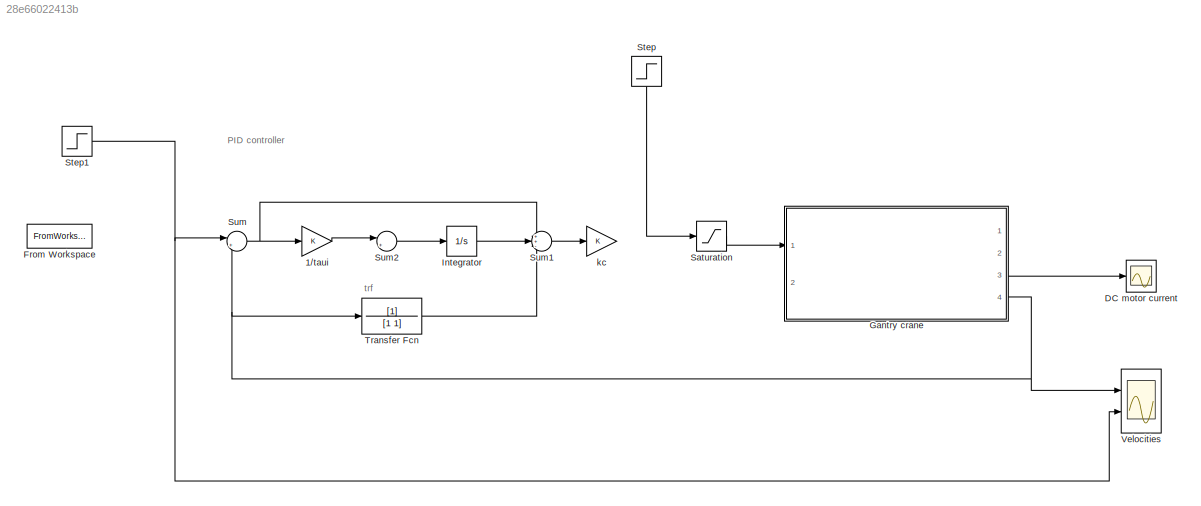
MODEL slx_28e66022413b
KIND model
CONFIG AbsTol = auto
CONFIG EnableMultiTasking = off
CONFIG FixedStep = auto
CONFIG MaxStep = auto
CONFIG MinStep = auto
CONFIG RelTol = 1e-3
CONFIG SampleTimeConstraint = Unconstrained
CONFIG Solver = ode23t
CONFIG SolverName = ode23t
CONFIG StartTime = 0.0
CONFIG StopTime = 20
BLOCK [Gain] 1//taui
BLOCK [Scope] DC motor current
  Floating = off
  NumInputPorts = 1
  Ports = [1]
  ScopeSpecificationString = Simulink.scopes.TimeScopeBlockCfg('CurrentConfiguration', extmgr.ConfigurationSet(extmgr.Configuration('Core','General UI',true),extmgr.Configuration('Core','Source UI',true),extmgr.Configuration('Sources','WiredSimulink',true,'DataLoggingVariableName','ScopeData1'),extmgr.Configuration('Visuals','Time Domain',true,'SerializedDisplays',{struct('MinYLimReal','-278.24613','MaxYLimReal','1366.8436','...<+1441ch>
BLOCK [FromWorkspace] From Workspace
  Commented = on
  VariableName = vel_in
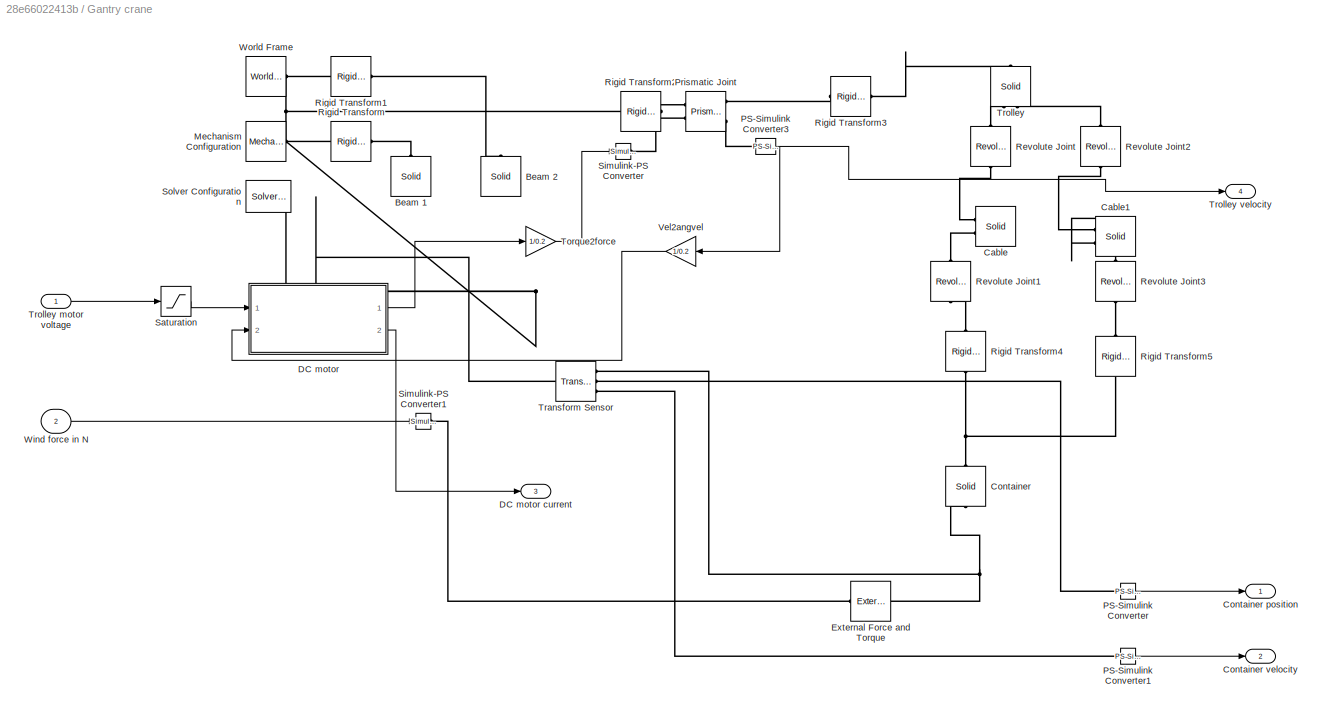
BLOCK [SubSystem] Gantry crane
  Ports = [2, 4]
  RequestExecContextInheritance = off
BLOCK [Reference] Gantry crane/Beam 1  REF=sm_lib/Body Elements/Solid
  Ports = [0, 0, 0, 0, 0, 0, 1]
  SourceBlock = sm_lib/Body Elements/Solid
  SourceProductBaseCode = MS
  SourceType = Brick Solid
BLOCK [Reference] Gantry crane/Beam 2  REF=sm_lib/Body Elements/Solid
  Ports = [0, 0, 0, 0, 0, 0, 1]
  SourceBlock = sm_lib/Body Elements/Solid
  SourceProductBaseCode = MS
  SourceType = Brick Solid
BLOCK [Reference] Gantry crane/Cable  REF=sm_lib/Body Elements/Solid
  Ports = [0, 0, 0, 0, 0, 2, 1]
  SourceBlock = sm_lib/Body Elements/Solid
  SourceProductBaseCode = MS
  SourceType = Cylindrical Solid
BLOCK [Reference] Gantry crane/Cable1  REF=sm_lib/Body Elements/Solid
  Ports = [0, 0, 0, 0, 0, 2, 1]
  SourceBlock = sm_lib/Body Elements/Solid
  SourceProductBaseCode = MS
  SourceType = Cylindrical Solid
BLOCK [Reference] Gantry crane/Container  REF=sm_lib/Body Elements/Solid
  Ports = [0, 0, 0, 0, 0, 1, 1]
  SourceBlock = sm_lib/Body Elements/Solid
  SourceProductBaseCode = MS
  SourceType = Brick Solid
BLOCK [Outport] Gantry crane/Container position
BLOCK [Outport] Gantry crane/Container velocity
  Port = 2
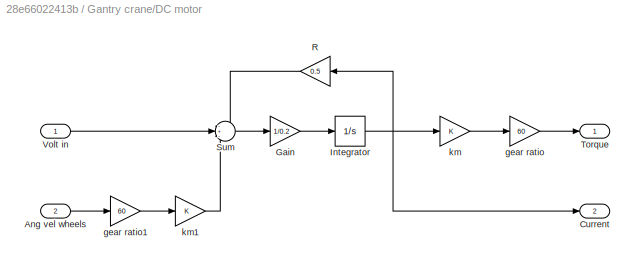
BLOCK [SubSystem] Gantry crane/DC motor
  Ports = [2, 2]
  RequestExecContextInheritance = off
BLOCK [Outport] Gantry crane/DC motor current
  Port = 3
BLOCK [Inport] Gantry crane/DC motor/Ang vel wheels
  Port = 2
BLOCK [Outport] Gantry crane/DC motor/Current
  Port = 2
BLOCK [Gain] Gantry crane/DC motor/Gain
  Gain = 1/0.2
BLOCK [Integrator] Gantry crane/DC motor/Integrator
  Ports = [1, 1]
BLOCK [Gain] Gantry crane/DC motor/R
  Gain = 0.5
BLOCK [Sum] Gantry crane/DC motor/Sum
  Inputs = -+-
  Ports = [3, 1]
BLOCK [Outport] Gantry crane/DC motor/Torque
BLOCK [Inport] Gantry crane/DC motor/Volt in
BLOCK [Gain] Gantry crane/DC motor/gear ratio
  Gain = 60
BLOCK [Gain] Gantry crane/DC motor/gear ratio1
  Gain = 60
BLOCK [Gain] Gantry crane/DC motor/km
BLOCK [Gain] Gantry crane/DC motor/km1
BLOCK [Reference] Gantry crane/External Force and Torque  REF=sm_lib/Forces and
Torques/External Force
and Torque
  Ports = [0, 0, 0, 0, 0, 1, 1]
  SourceBlock = sm_lib/Forces and\nTorques/External Force\nand Torque
  SourceProductBaseCode = MS
  SourceType = External Force\nand Torque
BLOCK [Reference] Gantry crane/Mechanism Configuration  REF=sm_lib/Utilities/Mechanism
Configuration
  Ports = [0, 0, 0, 0, 0, 0, 1]
  SourceBlock = sm_lib/Utilities/Mechanism\nConfiguration
  SourceProductBaseCode = MS
  SourceType = Mechanism\nConfiguration
BLOCK [Reference] Gantry crane/PS-Simulink Converter  REF=nesl_utility/PS-Simulink
Converter
  Ports = [0, 1, 0, 0, 0, 1]
  SourceBlock = nesl_utility/PS-Simulink\nConverter
  SourceProductBaseCode = PW,SS
  SourceType = PS-Simulink\nConverter
BLOCK [Reference] Gantry crane/PS-Simulink Converter1  REF=nesl_utility/PS-Simulink
Converter
  Ports = [0, 1, 0, 0, 0, 1]
  SourceBlock = nesl_utility/PS-Simulink\nConverter
  SourceProductBaseCode = PW,SS
  SourceType = PS-Simulink\nConverter
BLOCK [Reference] Gantry crane/PS-Simulink Converter3  REF=nesl_utility/PS-Simulink
Converter
  Ports = [0, 1, 0, 0, 0, 1]
  SourceBlock = nesl_utility/PS-Simulink\nConverter
  SourceProductBaseCode = PW,SS
  SourceType = PS-Simulink\nConverter
BLOCK [Reference] Gantry crane/Prismatic Joint  REF=sm_lib/Joints/Prismatic
Joint
  Ports = [0, 0, 0, 0, 0, 2, 3]
  SourceBlock = sm_lib/Joints/Prismatic\nJoint
  SourceProductBaseCode = MS
  SourceType = Prismatic\nJoint
BLOCK [Reference] Gantry crane/Revolute Joint  REF=sm_lib/Joints/Revolute Joint
  Ports = [0, 0, 0, 0, 0, 1, 1]
  SourceBlock = sm_lib/Joints/Revolute Joint
  SourceProductBaseCode = MS
  SourceType = Revolute Joint
BLOCK [Reference] Gantry crane/Revolute Joint1  REF=sm_lib/Joints/Revolute Joint
  Ports = [0, 0, 0, 0, 0, 1, 1]
  SourceBlock = sm_lib/Joints/Revolute Joint
  SourceProductBaseCode = MS
  SourceType = Revolute Joint
BLOCK [Reference] Gantry crane/Revolute Joint2  REF=sm_lib/Joints/Revolute Joint
  Ports = [0, 0, 0, 0, 0, 1, 1]
  SourceBlock = sm_lib/Joints/Revolute Joint
  SourceProductBaseCode = MS
  SourceType = Revolute Joint
BLOCK [Reference] Gantry crane/Revolute Joint3  REF=sm_lib/Joints/Revolute Joint
  Ports = [0, 0, 0, 0, 0, 1, 1]
  SourceBlock = sm_lib/Joints/Revolute Joint
  SourceProductBaseCode = MS
  SourceType = Revolute Joint
BLOCK [Reference] Gantry crane/Rigid Transform  REF=sm_lib/Frames and
Transforms/Rigid
Transform
  Ports = [0, 0, 0, 0, 0, 1, 1]
  SourceBlock = sm_lib/Frames and\nTransforms/Rigid\nTransform
  SourceProductBaseCode = MS
  SourceType = Rigid\nTransform
BLOCK [Reference] Gantry crane/Rigid Transform1  REF=sm_lib/Frames and
Transforms/Rigid
Transform
  Ports = [0, 0, 0, 0, 0, 1, 1]
  SourceBlock = sm_lib/Frames and\nTransforms/Rigid\nTransform
  SourceProductBaseCode = MS
  SourceType = Rigid\nTransform
BLOCK [Reference] Gantry crane/Rigid Transform2  REF=sm_lib/Frames and
Transforms/Rigid
Transform
  Ports = [0, 0, 0, 0, 0, 1, 1]
  SourceBlock = sm_lib/Frames and\nTransforms/Rigid\nTransform
  SourceProductBaseCode = MS
  SourceType = Rigid\nTransform
BLOCK [Reference] Gantry crane/Rigid Transform3  REF=sm_lib/Frames and
Transforms/Rigid
Transform
  Ports = [0, 0, 0, 0, 0, 1, 1]
  SourceBlock = sm_lib/Frames and\nTransforms/Rigid\nTransform
  SourceProductBaseCode = MS
  SourceType = Rigid\nTransform
BLOCK [Reference] Gantry crane/Rigid Transform4  REF=sm_lib/Frames and
Transforms/Rigid
Transform
  Ports = [0, 0, 0, 0, 0, 1, 1]
  SourceBlock = sm_lib/Frames and\nTransforms/Rigid\nTransform
  SourceProductBaseCode = MS
  SourceType = Rigid\nTransform
BLOCK [Reference] Gantry crane/Rigid Transform5  REF=sm_lib/Frames and
Transforms/Rigid
Transform
  Ports = [0, 0, 0, 0, 0, 1, 1]
  SourceBlock = sm_lib/Frames and\nTransforms/Rigid\nTransform
  SourceProductBaseCode = MS
  SourceType = Rigid\nTransform
BLOCK [Saturate] Gantry crane/Saturation
  LowerLimit = -600
  UpperLimit = 600
BLOCK [Reference] Gantry crane/Simulink-PS Converter  REF=nesl_utility/Simulink-PS
Converter
  Ports = [1, 0, 0, 0, 0, 0, 1]
  SourceBlock = nesl_utility/Simulink-PS\nConverter
  SourceProductBaseCode = PW,SS
  SourceType = Simulink-PS\nConverter
BLOCK [Reference] Gantry crane/Simulink-PS Converter1  REF=nesl_utility/Simulink-PS
Converter
  Ports = [1, 0, 0, 0, 0, 0, 1]
  SourceBlock = nesl_utility/Simulink-PS\nConverter
  SourceProductBaseCode = PW,SS
  SourceType = Simulink-PS\nConverter
BLOCK [Reference] Gantry crane/Solver Configuration  REF=nesl_utility/Solver
Configuration
  Ports = [0, 0, 0, 0, 0, 0, 1]
  SourceBlock = nesl_utility/Solver\nConfiguration
  SourceProductBaseCode = PW,SS
  SourceType = Solver\nConfiguration
BLOCK [Gain] Gantry crane/Torque2force
  Gain = 1/0.2
BLOCK [Reference] Gantry crane/Transform Sensor  REF=sm_lib/Frames and
Transforms/Transform
Sensor
  Ports = [0, 0, 0, 0, 0, 1, 3]
  SourceBlock = sm_lib/Frames and\nTransforms/Transform\nSensor
  SourceProductBaseCode = MS
  SourceType = Transform\nSensor
BLOCK [Reference] Gantry crane/Trolley  REF=sm_lib/Body Elements/Solid
  Ports = [0, 0, 0, 0, 0, 2, 1]
  SourceBlock = sm_lib/Body Elements/Solid
  SourceProductBaseCode = MS
  SourceType = Brick Solid
BLOCK [Inport] Gantry crane/Trolley motor voltage
BLOCK [Outport] Gantry crane/Trolley velocity
  Port = 4
BLOCK [Gain] Gantry crane/Vel2angvel
  Gain = 1/0.2
BLOCK [Inport] Gantry crane/Wind force in N
  Port = 2
BLOCK [Reference] Gantry crane/World Frame  REF=sm_lib/Frames and
Transforms/World Frame
  Ports = [0, 0, 0, 0, 0, 0, 1]
  SourceBlock = sm_lib/Frames and\nTransforms/World Frame
  SourceProductBaseCode = MS
  SourceType = World Frame
BLOCK [Integrator] Integrator
  Ports = [1, 1]
BLOCK [Saturate] Saturation
  LowerLimit = -600
  UpperLimit = 600
BLOCK [Step] Step
  After = 50
  SampleTime = 0
BLOCK [Step] Step1
  SampleTime = 0
BLOCK [Sum] Sum
  Inputs = |+-
  Ports = [2, 1]
BLOCK [Sum] Sum1
  Inputs = ++-
  Ports = [3, 1]
BLOCK [Sum] Sum2
  Inputs = |++
  Ports = [2, 1]
BLOCK [TransferFcn] Transfer Fcn
  Denominator = [1 1]
BLOCK [Scope] Velocities
  Floating = off
  NumInputPorts = 2
  Ports = [2]
  ScopeSpecificationString = Simulink.scopes.TimeScopeBlockCfg('CurrentConfiguration', extmgr.ConfigurationSet(extmgr.Configuration('Core','General UI',true),extmgr.Configuration('Core','Source UI',true),extmgr.Configuration('Sources','WiredSimulink',true,'DataLoggingVariableName','ScopeData1'),extmgr.Configuration('Visuals','Time Domain',true,'SerializedDisplays',{struct('MinYLimReal','-0.17453','MaxYLimReal','1.31403','YLab...<+1701ch>
BLOCK [Gain] kc
ANNOTATION (root): PID controller
ANNOTATION (root): trf
LINE 1//taui:1 -> Sum2:1
LINE Gantry crane/DC motor/Ang vel wheels:1 -> Gantry crane/DC motor/gear ratio1:1
LINE Gantry crane/DC motor/Gain:1 -> Gantry crane/DC motor/Integrator:1
NET Gantry crane/DC motor/Integrator:1 -> Gantry crane/DC motor/Current:1, Gantry crane/DC motor/R:1, Gantry crane/DC motor/km:1
LINE Gantry crane/DC motor/R:1 -> Gantry crane/DC motor/Sum:1
LINE Gantry crane/DC motor/Sum:1 -> Gantry crane/DC motor/Gain:1
LINE Gantry crane/DC motor/Volt in:1 -> Gantry crane/DC motor/Sum:2
LINE Gantry crane/DC motor/gear ratio1:1 -> Gantry crane/DC motor/km1:1
LINE Gantry crane/DC motor/gear ratio:1 -> Gantry crane/DC motor/Torque:1
LINE Gantry crane/DC motor/km1:1 -> Gantry crane/DC motor/Sum:3
LINE Gantry crane/DC motor/km:1 -> Gantry crane/DC motor/gear ratio:1
LINE Gantry crane/DC motor:1 -> Gantry crane/Torque2force:1
LINE Gantry crane/DC motor:2 -> Gantry crane/DC motor current:1
LINE Gantry crane/PS-Simulink Converter1:1 -> Gantry crane/Container velocity:1
NET Gantry crane/PS-Simulink Converter3:1 -> Gantry crane/Trolley velocity:1, Gantry crane/Vel2angvel:1
LINE Gantry crane/PS-Simulink Converter:1 -> Gantry crane/Container position:1
LINE Gantry crane/Saturation:1 -> Gantry crane/DC motor:1
LINE Gantry crane/Torque2force:1 -> Gantry crane/Simulink-PS Converter:1
LINE Gantry crane/Trolley motor voltage:1 -> Gantry crane/Saturation:1
LINE Gantry crane/Vel2angvel:1 -> Gantry crane/DC motor:2
LINE Gantry crane/Wind force in N:1 -> Gantry crane/Simulink-PS Converter1:1
LINE Gantry crane:3 -> DC motor current:1
NET Gantry crane:4 -> Sum:2, Transfer Fcn:1, Velocities:1
LINE Integrator:1 -> Sum1:2
LINE Saturation:1 -> Gantry crane:1
NET Step1:1 -> Sum:1, Velocities:2
LINE Step:1 -> Saturation:1
LINE Sum1:1 -> kc:1
LINE Sum2:1 -> Integrator:1
NET Sum:1 -> 1//taui:1, Sum1:1
LINE Transfer Fcn:1 -> Sum1:3
PLINE Gantry crane/Beam 1:RConn1 -- Gantry crane/Rigid Transform:RConn1
PLINE Gantry crane/Beam 2:RConn1 -- Gantry crane/Rigid Transform1:RConn1
PLINE Gantry crane/Cable1:LConn1 -- Gantry crane/Revolute Joint2:RConn1
PLINE Gantry crane/Cable1:LConn2 -- Gantry crane/Revolute Joint3:LConn1
PLINE Gantry crane/Cable:LConn1 -- Gantry crane/Revolute Joint:RConn1
PLINE Gantry crane/Cable:LConn2 -- Gantry crane/Revolute Joint1:LConn1
PNET net1: Gantry crane/Container:LConn1 -- Gantry crane/Rigid Transform4:LConn1 -- Gantry crane/Rigid Transform5:LConn1
PNET net2: Gantry crane/Container:RConn1 -- Gantry crane/External Force and Torque:RConn1 -- Gantry crane/Transform Sensor:RConn1
PLINE Gantry crane/External Force and Torque:LConn1 -- Gantry crane/Simulink-PS Converter1:RConn1
PNET net3: Gantry crane/Mechanism Configuration:RConn1 -- Gantry crane/Rigid Transform1:LConn1 -- Gantry crane/Rigid Transform2:LConn1 -- Gantry crane/Rigid Transform:LConn1 -- Gantry crane/Solver Configuration:RConn1 -- Gantry crane/Transform Sensor:LConn1 -- Gantry crane/World Frame:RConn1
PLINE Gantry crane/PS-Simulink Converter1:LConn1 -- Gantry crane/Transform Sensor:RConn3
PLINE Gantry crane/PS-Simulink Converter3:LConn1 -- Gantry crane/Prismatic Joint:RConn3
PLINE Gantry crane/PS-Simulink Converter:LConn1 -- Gantry crane/Transform Sensor:RConn2
PLINE Gantry crane/Prismatic Joint:LConn1 -- Gantry crane/Rigid Transform2:RConn1
PLINE Gantry crane/Prismatic Joint:LConn2 -- Gantry crane/Simulink-PS Converter:RConn1
PLINE Gantry crane/Prismatic Joint:RConn1 -- Gantry crane/Rigid Transform3:LConn1
PLINE Gantry crane/Revolute Joint1:RConn1 -- Gantry crane/Rigid Transform4:RConn1
PLINE Gantry crane/Revolute Joint2:LConn1 -- Gantry crane/Trolley:LConn2
PLINE Gantry crane/Revolute Joint3:RConn1 -- Gantry crane/Rigid Transform5:RConn1
PLINE Gantry crane/Revolute Joint:LConn1 -- Gantry crane/Trolley:LConn1
PLINE Gantry crane/Rigid Transform3:RConn1 -- Gantry crane/Trolley:RConn1
note: NET lines group one-source signal fan-out (src -> all destinations, sorted); 1:1 wires keep LINE; PNET lines group multi-terminal physical nets as a canonical sorted terminal list (undirected conserving connections); 2-terminal nets keep the pairwise PLINE form
